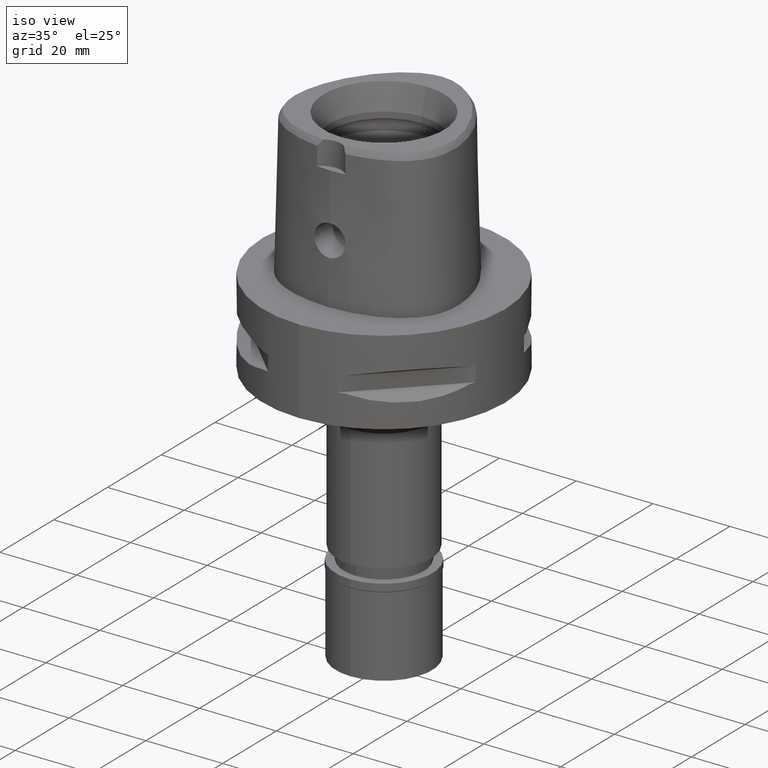
[diagram: clean part render]
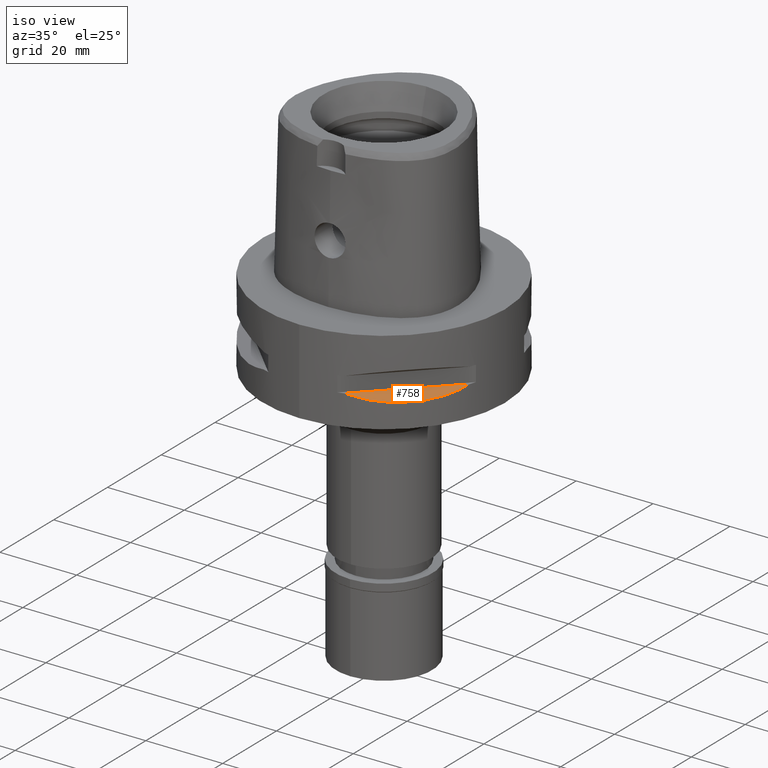
[diagram: same view with one face highlighted and labeled with its STEP entity id]
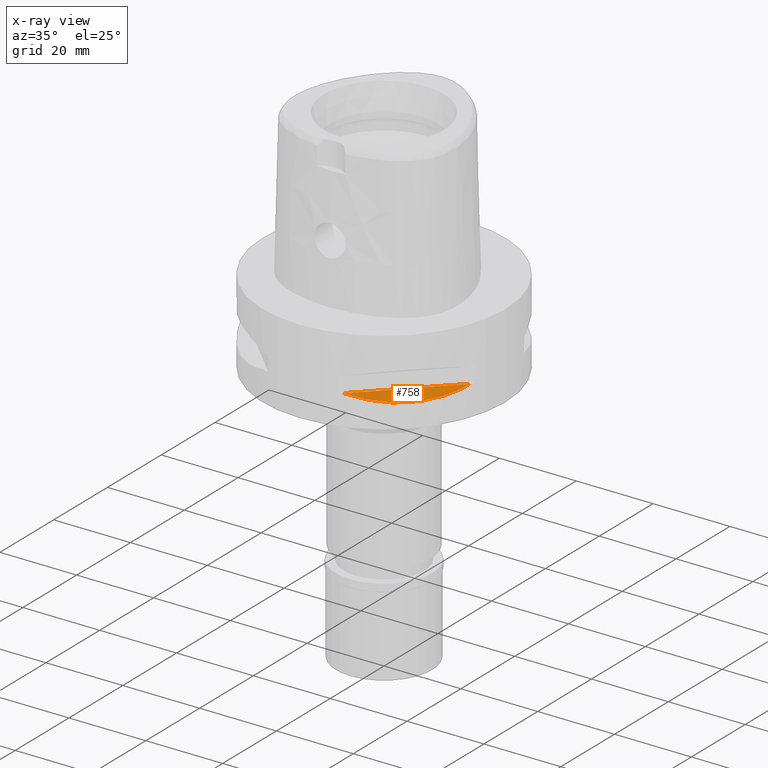
[diagram: x-ray of the same camera — body ghosted, the highlighted face saturated]
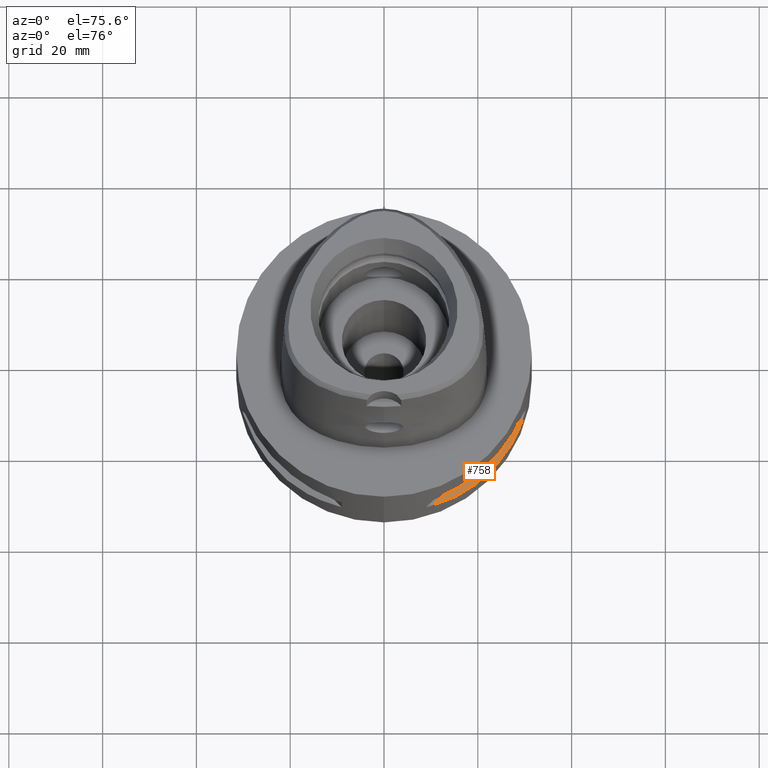
[diagram: same view with one face highlighted and labeled with its STEP entity id]
A machine part, iso view. The second image highlights one B-rep face of the part: STEP entity #758.
The next image is the same camera in x-ray: the body ghosted, the highlighted face saturated — about 0% of this face is hidden behind the body in this view.
A second angle (auxiliary view) of the same face is appended — the face is thin or edge-on in the first view.
In plain terms, the highlighted planar face has unit normal (-0.3536, 0.3536, -0.866).
Its self-contained STEP definition (entity closure, byte-faithful):
#87 = VECTOR ( 'NONE', #3810, 1000.000000000000114 ) ;
#101 = CARTESIAN_POINT ( 'NONE',  ( 26.52527364208797778, -16.98999780422225214, -15.41788098766626369 ) ) ;
#137 = CARTESIAN_POINT ( 'NONE',  ( 16.80193241490862022, -26.64486562695897121, -15.38992683736031708 ) ) ;
#168 = EDGE_CURVE ( 'NONE', #2827, #3926, #1145, .T. ) ;
#180 = CARTESIAN_POINT ( 'NONE',  ( 26.01217882835248929, -17.76952662671760308, -15.52665221626392800 ) ) ;
#458 = CARTESIAN_POINT ( 'NONE',  ( 28.91382665369116722, -12.73197616787390629, -14.65467361753813513 ) ) ;
#461 = DIRECTION ( 'NONE',  ( -0.3535533905933049836, 0.3535533905933054277, -0.8660254037844130615 ) ) ;
#555 = CARTESIAN_POINT ( 'NONE',  ( 23.08532645888790213, -21.46242677077769656, -15.83938991065623014 ) ) ;
#644 = AXIS2_PLACEMENT_3D ( 'NONE', #3203, #461, #1285 ) ;
#758 = ADVANCED_FACE ( 'NONE', ( #849 ), #2008, .F. ) ;
#846 = CARTESIAN_POINT ( 'NONE',  ( 27.86285265926851551, -14.89252659056515427, -15.10765629751784012 ) ) ;
#849 = FACE_OUTER_BOUND ( 'NONE', #4379, .T. ) ;
#855 = CARTESIAN_POINT ( 'NONE',  ( 18.86897208075735222, -25.32725744466094753, -15.69588095933972838 ) ) ;
#861 = CARTESIAN_POINT ( 'NONE',  ( 26.48642424310703447, -17.05047092244371854, -15.42670883407968674 ) ) ;
#868 = ORIENTED_EDGE ( 'NONE', *, *, #2643, .F. ) ;
#970 = CARTESIAN_POINT ( 'NONE',  ( 26.29071741524046146, -17.35163608579731687, -15.46976201925743055 ) ) ;
#1006 = CARTESIAN_POINT ( 'NONE',  ( 16.70616724746230730, -26.70521063584596888, -15.37546661818052307 ) ) ;
#1076 = LINE ( 'NONE', #2292, #87 ) ;
#1145 = B_SPLINE_CURVE_WITH_KNOTS ( 'NONE', 3,
 ( #3492, #3198, #3597, #2107, #3224, #3995, #1006, #137, #3671, #4495, #855, #3985, #555, #3617, #1243, #180, #970, #2762, #861, #101, #1272, #846, #458, #2003 ),
 .UNSPECIFIED., .F., .F.,
 ( 4, 1, 1, 1, 1, 1, 2, 2, 2, 1, 1, 1, 1, 1, 2, 2, 4 ),
 ( 0.0000000000000000000, 0.1250000000000017486, 0.1875000000000026090, 0.2187500000000033029, 0.2343750000000038858, 0.2421875000000042744, 0.2460937500000044686, 0.2500000000000046629, 0.5000000000000101030, 0.6250000000000126565, 0.6875000000000138778, 0.7187500000000146549, 0.7343750000000150990, 0.7421875000000150990, 0.7460937500000149880, 0.7500000000000149880, 1.000000000000000000 ),
 .UNSPECIFIED. ) ;
#1243 = CARTESIAN_POINT ( 'NONE',  ( 25.43927894892505392, -18.59229662064599609, -15.62866126334696482 ) ) ;
#1272 = CARTESIAN_POINT ( 'NONE',  ( 26.54368690921823060, -16.96123479565122238, -15.41365572341632095 ) ) ;
#1285 = DIRECTION ( 'NONE',  ( -0.9258200997725358761, 0.0000000000000000000, 0.3779644730092654448 ) ) ;
#2003 = CARTESIAN_POINT ( 'NONE',  ( 29.71690375017999841, -10.44775724750000023, -14.05000000000000071 ) ) ;
#2008 = PLANE ( 'NONE',  #644 ) ;
#2107 = CARTESIAN_POINT ( 'NONE',  ( 15.11986997311391612, -27.64634172017876068, -15.11207862404153524 ) ) ;
#2292 = CARTESIAN_POINT ( 'NONE',  ( 10.44775724750000023, -29.71690375017999841, -14.05000000000000071 ) ) ;
#2643 = EDGE_CURVE ( 'NONE', #2827, #3926, #1076, .T. ) ;
#2762 = CARTESIAN_POINT ( 'NONE',  ( 26.42800887047804181, -17.14106442934815533, -15.43984550238795350 ) ) ;
#2827 = VERTEX_POINT ( 'NONE', #4916 ) ;
#3198 = CARTESIAN_POINT ( 'NONE',  ( 11.58970337495594194, -29.31542262584231651, -14.35229357167384912 ) ) ;
#3203 = CARTESIAN_POINT ( 'NONE',  ( 32.45669916960000023, -7.707961828074000543, -14.05000000000000071 ) ) ;
#3224 = CARTESIAN_POINT ( 'NONE',  ( 16.03138450079309862, -27.11872488589068553, -15.26880420108148506 ) ) ;
#3492 = CARTESIAN_POINT ( 'NONE',  ( 10.44775724750000023, -29.71690375017999841, -14.05000000000000071 ) ) ;
#3597 = CARTESIAN_POINT ( 'NONE',  ( 13.25636937905766999, -28.62019653468112068, -14.74888225542022369 ) ) ;
#3617 = CARTESIAN_POINT ( 'NONE',  ( 24.23018836746430082, -20.18579225685413903, -15.78559396979327367 ) ) ;
#3671 = CARTESIAN_POINT ( 'NONE',  ( 16.86571563436881149, -26.60451452154907059, -15.39949295786330197 ) ) ;
#3808 = CARTESIAN_POINT ( 'NONE',  ( 29.71690375017999841, -10.44775724750000023, -14.05000000000000071 ) ) ;
#3810 = DIRECTION ( 'NONE',  ( 0.7071067811865474617, 0.7071067811865474617, 0.0000000000000000000 ) ) ;
#3926 = VERTEX_POINT ( 'NONE', #3808 ) ;
#3985 = CARTESIAN_POINT ( 'NONE',  ( 20.65093790435025767, -23.89673728057072211, -15.83935804902266931 ) ) ;
#3995 = CARTESIAN_POINT ( 'NONE',  ( 16.48208282229545318, -26.84474411198741350, -15.34094883778379348 ) ) ;
#4099 = ORIENTED_EDGE ( 'NONE', *, *, #168, .T. ) ;
#4379 = EDGE_LOOP ( 'NONE', ( #868, #4099 ) ) ;
#4495 = CARTESIAN_POINT ( 'NONE',  ( 16.89910283486696940, -26.58330558444649583, -15.40446471307537202 ) ) ;
#4916 = CARTESIAN_POINT ( 'NONE',  ( 10.44775724750000023, -29.71690375017999841, -14.05000000000000071 ) ) ;